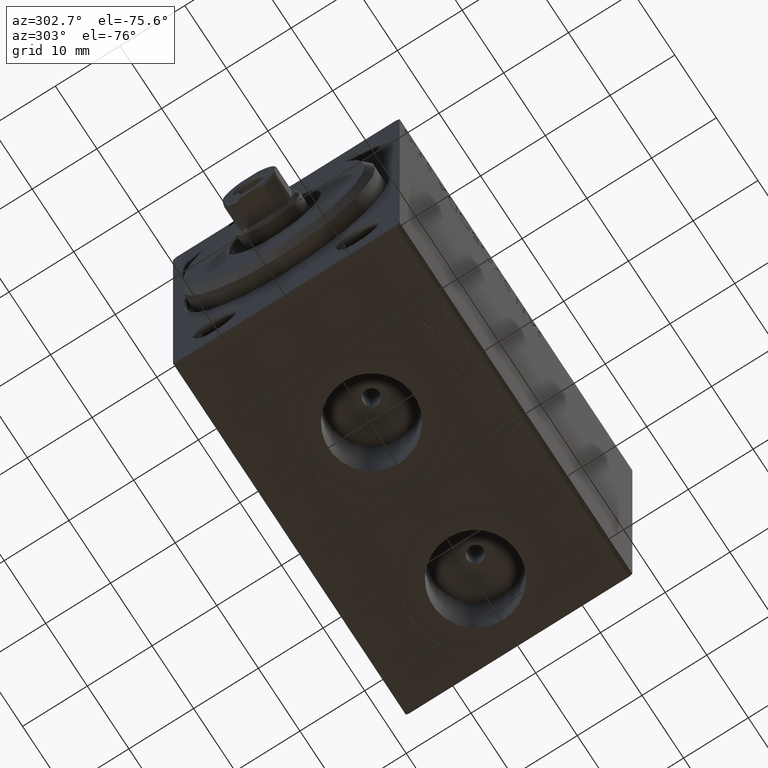
[diagram: clean part render]
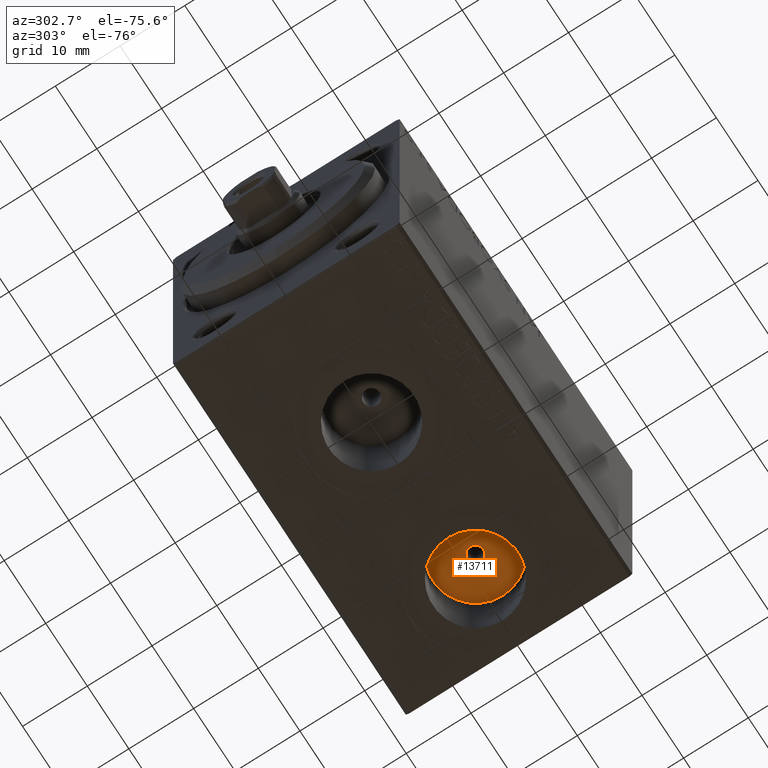
[diagram: same view with one face highlighted and labeled with its STEP entity id]
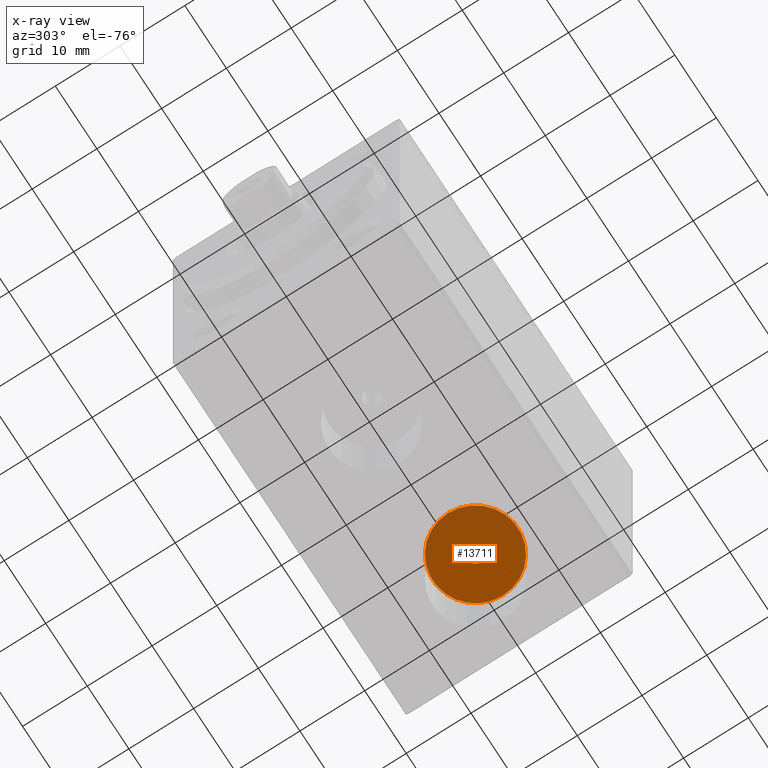
[diagram: x-ray of the same camera — body ghosted, the highlighted face saturated]
A machine part, auxiliary view. The second image highlights one B-rep face of the part: STEP entity #13711.
The next image is the same camera in x-ray: the body ghosted, the highlighted face saturated — about 33% of this face is hidden behind the body in this view.
In plain terms, the highlighted planar face has unit normal (0, 0, -1).
Its self-contained STEP definition (entity closure, byte-faithful):
#1927 = VERTEX_POINT ( 'NONE', #13356 ) ;
#2123 = EDGE_CURVE ( 'NONE', #31133, #1927, #28708, .T. ) ;
#2219 = VERTEX_POINT ( 'NONE', #9173 ) ;
#5049 = ORIENTED_EDGE ( 'NONE', *, *, #2123, .F. ) ;
#8266 = DIRECTION ( 'NONE',  ( 0.000000000000000000, 0.000000000000000000, -1.000000000000000000 ) ) ;
#8753 = CARTESIAN_POINT ( 'NONE',  ( 0.000000000000000000, 0.000000000000000000, -14.50000000000000711 ) ) ;
#9173 = CARTESIAN_POINT ( 'NONE',  ( 38.91999999999999460, -5.788603209277299718E-15, -14.50000000000000711 ) ) ;
#13356 = CARTESIAN_POINT ( 'NONE',  ( 44.25000000000000711, -5.190827212975183076E-15, -14.50000000000000711 ) ) ;
#13711 = ADVANCED_FACE ( 'NONE', ( #15876, #15425 ), #32681, .T. ) ;
#14124 = DIRECTION ( 'NONE',  ( -1.000000000000000000, 0.000000000000000000, 0.000000000000000000 ) ) ;
#14149 = DIRECTION ( 'NONE',  ( 0.000000000000000000, 0.000000000000000000, -1.000000000000000000 ) ) ;
#14938 = CARTESIAN_POINT ( 'NONE',  ( 45.50000000000000000, -5.190827212975183076E-15, -14.50000000000000711 ) ) ;
#15425 = FACE_OUTER_BOUND ( 'NONE', #35446, .T. ) ;
#15647 = DIRECTION ( 'NONE',  ( -1.000000000000000000, 0.000000000000000000, -0.000000000000000000 ) ) ;
#15876 = FACE_BOUND ( 'NONE', #38262, .T. ) ;
#16646 = ORIENTED_EDGE ( 'NONE', *, *, #43946, .F. ) ;
#18606 = CARTESIAN_POINT ( 'NONE',  ( 46.74999999999999289, -5.037746363081764141E-15, -14.50000000000000711 ) ) ;
#18946 = AXIS2_PLACEMENT_3D ( 'NONE', #24269, #14149, #28168 ) ;
#19910 = AXIS2_PLACEMENT_3D ( 'NONE', #14938, #8266, #29416 ) ;
#20855 = CIRCLE ( 'NONE', #22344, 6.580000000000002736 ) ;
#21080 = AXIS2_PLACEMENT_3D ( 'NONE', #35604, #21990, #35828 ) ;
#21990 = DIRECTION ( 'NONE',  ( 0.000000000000000000, 0.000000000000000000, -1.000000000000000000 ) ) ;
#22344 = AXIS2_PLACEMENT_3D ( 'NONE', #35299, #41756, #14124 ) ;
#24269 = CARTESIAN_POINT ( 'NONE',  ( 45.50000000000000000, -5.190827212975183076E-15, -14.50000000000000711 ) ) ;
#26073 = ORIENTED_EDGE ( 'NONE', *, *, #28747, .T. ) ;
#28168 = DIRECTION ( 'NONE',  ( -1.000000000000000000, 0.000000000000000000, 0.000000000000000000 ) ) ;
#28708 = CIRCLE ( 'NONE', #19910, 1.249999999999994227 ) ;
#28747 = EDGE_CURVE ( 'NONE', #37148, #2219, #20855, .T. ) ;
#29416 = DIRECTION ( 'NONE',  ( -1.000000000000000000, 0.000000000000000000, 0.000000000000000000 ) ) ;
#29447 = DIRECTION ( 'NONE',  ( 0.000000000000000000, 0.000000000000000000, -1.000000000000000000 ) ) ;
#30649 = CIRCLE ( 'NONE', #21080, 6.580000000000002736 ) ;
#31133 = VERTEX_POINT ( 'NONE', #18606 ) ;
#32681 = PLANE ( 'NONE',  #44396 ) ;
#35299 = CARTESIAN_POINT ( 'NONE',  ( 45.50000000000000000, -5.788603209277299718E-15, -14.50000000000000711 ) ) ;
#35327 = CARTESIAN_POINT ( 'NONE',  ( 52.07999999999999829, -4.982785615438341465E-15, -14.50000000000000711 ) ) ;
#35446 = EDGE_LOOP ( 'NONE', ( #45241, #26073 ) ) ;
#35604 = CARTESIAN_POINT ( 'NONE',  ( 45.50000000000000000, -5.788603209277299718E-15, -14.50000000000000711 ) ) ;
#35828 = DIRECTION ( 'NONE',  ( -1.000000000000000000, 0.000000000000000000, 0.000000000000000000 ) ) ;
#37148 = VERTEX_POINT ( 'NONE', #35327 ) ;
#38262 = EDGE_LOOP ( 'NONE', ( #16646, #5049 ) ) ;
#41518 = EDGE_CURVE ( 'NONE', #2219, #37148, #30649, .T. ) ;
#41756 = DIRECTION ( 'NONE',  ( 0.000000000000000000, 0.000000000000000000, -1.000000000000000000 ) ) ;
#43223 = CIRCLE ( 'NONE', #18946, 1.249999999999994227 ) ;
#43946 = EDGE_CURVE ( 'NONE', #1927, #31133, #43223, .T. ) ;
#44396 = AXIS2_PLACEMENT_3D ( 'NONE', #8753, #29447, #15647 ) ;
#45241 = ORIENTED_EDGE ( 'NONE', *, *, #41518, .T. ) ;